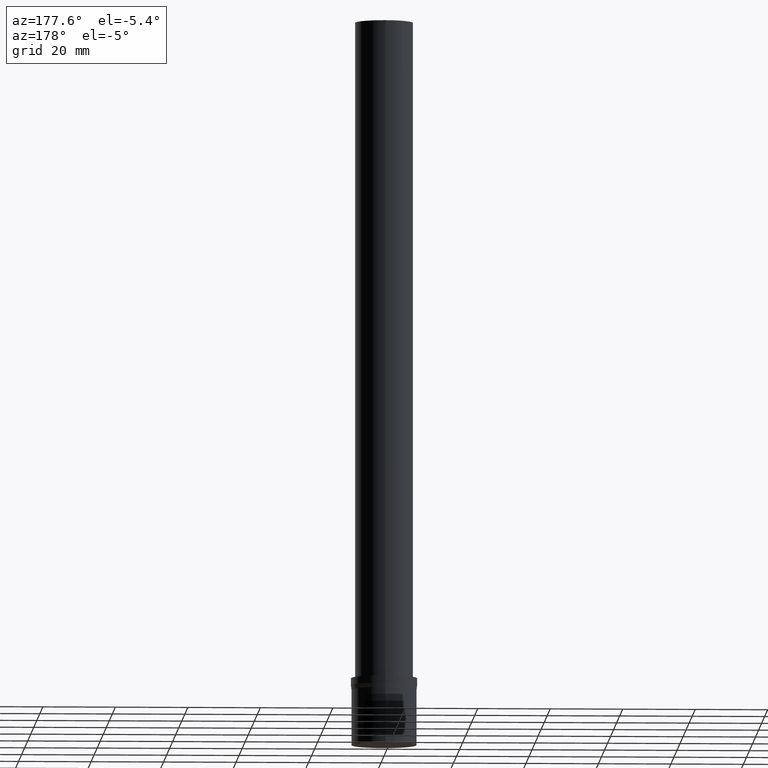
[diagram: clean part render]
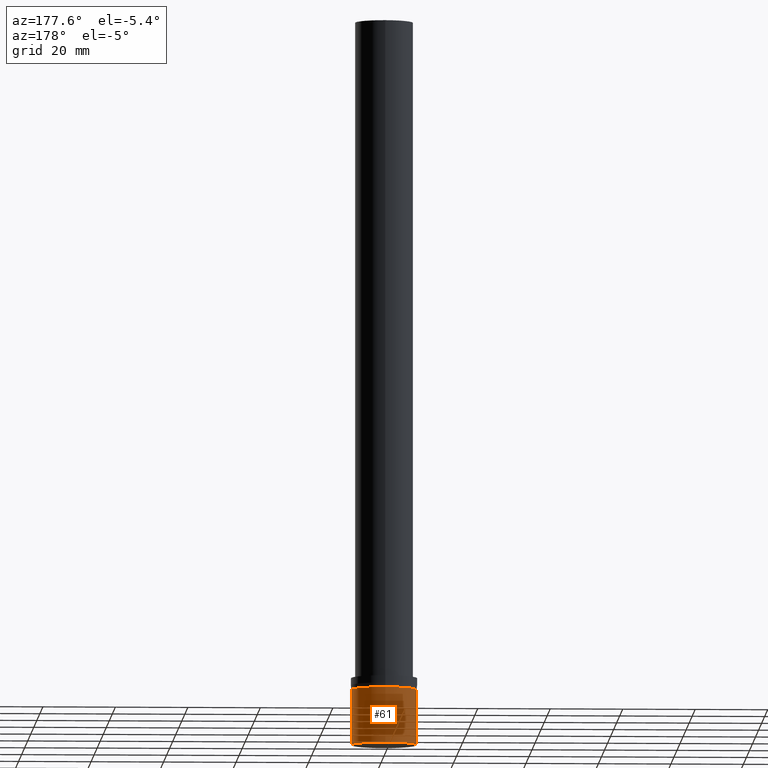
[diagram: same view with one face highlighted and labeled with its STEP entity id]
A machine part, auxiliary view. The second image highlights one B-rep face of the part: STEP entity #61.
In plain terms, the highlighted cylindrical surface (bore or boss wall) has radius 9 mm, axis along (0, 0, -1).
Its self-contained STEP definition (entity closure, byte-faithful):
#47=EDGE_CURVE('Unnamed[1]',#104,#104,#105,.T.);
#54=EDGE_CURVE('Unnamed[1]',#114,#114,#115,.T.);
#61=ADVANCED_FACE('Unnamed[1]',(#124,#125),#126,.T.);
#104=VERTEX_POINT('',#168);
#105=CIRCLE('',#169,9.00000000000097);
#114=VERTEX_POINT('',#181);
#115=CIRCLE('',#182,9.000000000001);
#124=FACE_BOUND('',#194,.T.);
#125=FACE_BOUND('',#195,.T.);
#126=CYLINDRICAL_SURFACE('',#196,9.00000000000098);
#168=CARTESIAN_POINT('',(-9.36854801347719E-016,9.00000000000096,15.2999999999999));
#169=AXIS2_PLACEMENT_3D('',#234,#235,#236);
#181=CARTESIAN_POINT('',(-4.46175299982677E-030,9.00000000000099,7.21564556952428E-014));
#182=AXIS2_PLACEMENT_3D('',#245,#246,#247);
#194=EDGE_LOOP('',(#255));
#195=EDGE_LOOP('',(#256));
#196=AXIS2_PLACEMENT_3D('',#257,#258,#259);
#234=CARTESIAN_POINT('',(-9.36854801347719E-016,-5.100067806266E-015,15.2999999999999));
#235=DIRECTION('',(6.12323399573677E-017,2.62119965380345E-016,-1.0));
#236=DIRECTION('',(-2.08773715605518E-032,1.0,2.62119965380345E-016));
#245=CARTESIAN_POINT('',(-4.27385665578178E-030,-1.08963233594676E-015,6.97973760068194E-014));
#246=DIRECTION('',(6.12323399573677E-017,2.62119965380345E-016,-1.0));
#247=DIRECTION('',(-2.08773715605518E-032,1.0,2.62119965380345E-016));
#255=ORIENTED_EDGE('',*,*,#54,.F.);
#256=ORIENTED_EDGE('',*,*,#47,.T.);
#257=CARTESIAN_POINT('',(-4.68427400673862E-016,-3.09485007110638E-015,7.64999999999998));
#258=DIRECTION('',(6.12323399573677E-017,2.62119965380345E-016,-1.0));
#259=DIRECTION('',(-2.08773715605518E-032,1.0,2.62119965380345E-016));